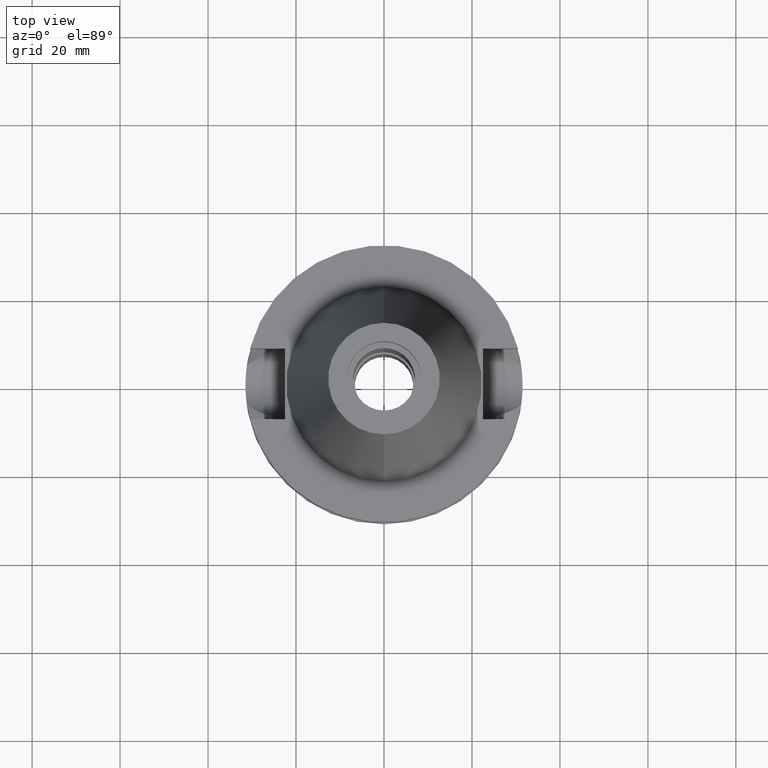
[diagram: clean part render]
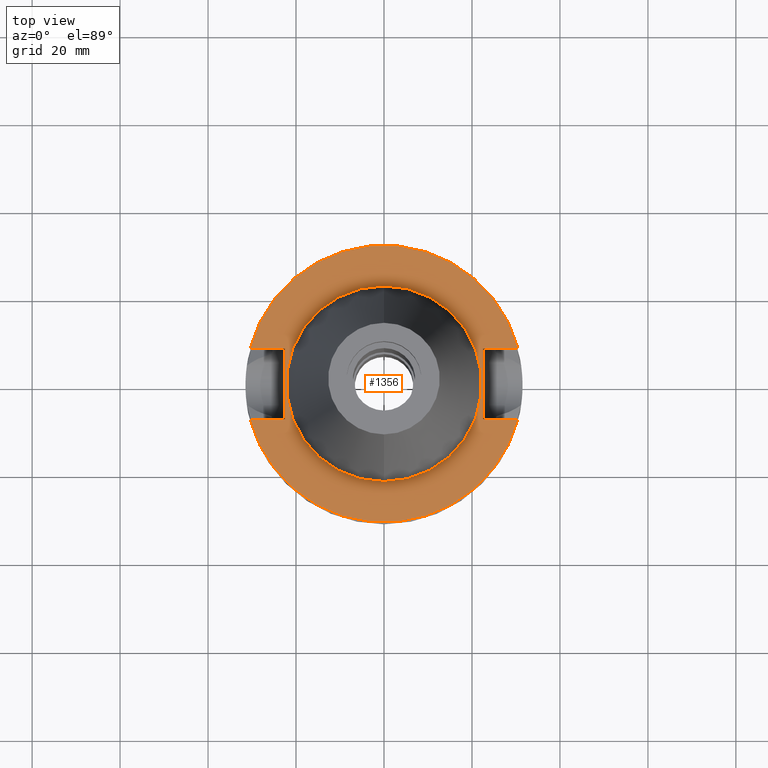
[diagram: same view with one face highlighted and labeled with its STEP entity id]
A machine part, top view. The second image highlights one B-rep face of the part: STEP entity #1356.
In plain terms, the highlighted planar face has unit normal (0, 0, -1).
Its self-contained STEP definition (entity closure, byte-faithful):
#10 = CARTESIAN_POINT ( 'NONE',  ( 0.0000000000000000000, 22.22500000000000142, -2.000000000000000000 ) ) ;
#28 = VERTEX_POINT ( 'NONE', #2263 ) ;
#66 = CARTESIAN_POINT ( 'NONE',  ( -22.50000000000000000, 8.050000000000000711, -2.000000000000000000 ) ) ;
#90 = CARTESIAN_POINT ( 'NONE',  ( 0.0000000000000000000, 2.106637423893000012E-14, -2.000000000000000000 ) ) ;
#122 = DIRECTION ( 'NONE',  ( 1.000000000000000000, 3.573249715389999860E-14, 0.0000000000000000000 ) ) ;
#193 = FACE_BOUND ( 'NONE', #2890, .T. ) ;
#225 = CARTESIAN_POINT ( 'NONE',  ( -30.45402272279000044, 8.050000000000000711, -2.000000000000000000 ) ) ;
#264 = DIRECTION ( 'NONE',  ( -1.000000000000000000, 3.550916904668000126E-14, 0.0000000000000000000 ) ) ;
#272 = VERTEX_POINT ( 'NONE', #2700 ) ;
#293 = DIRECTION ( 'NONE',  ( 0.0000000000000000000, -1.000000000000000000, 0.0000000000000000000 ) ) ;
#309 = VERTEX_POINT ( 'NONE', #225 ) ;
#336 = PLANE ( 'NONE',  #1487 ) ;
#354 = LINE ( 'NONE', #1770, #2792 ) ;
#378 = VERTEX_POINT ( 'NONE', #3040 ) ;
#414 = CARTESIAN_POINT ( 'NONE',  ( -22.50000000000000000, 8.050000000000000711, -2.000000000000000000 ) ) ;
#420 = VECTOR ( 'NONE', #1044, 1000.000000000000000 ) ;
#435 = VERTEX_POINT ( 'NONE', #66 ) ;
#586 = DIRECTION ( 'NONE',  ( 0.0000000000000000000, 0.0000000000000000000, -1.000000000000000000 ) ) ;
#648 = ORIENTED_EDGE ( 'NONE', *, *, #687, .T. ) ;
#687 = EDGE_CURVE ( 'NONE', #3181, #272, #1034, .T. ) ;
#748 = VERTEX_POINT ( 'NONE', #2260 ) ;
#773 = CARTESIAN_POINT ( 'NONE',  ( 0.0000000000000000000, 2.106637423893000012E-14, -2.000000000000000000 ) ) ;
#782 = ORIENTED_EDGE ( 'NONE', *, *, #1744, .F. ) ;
#785 = CIRCLE ( 'NONE', #3118, 31.50000000000000000 ) ;
#889 = AXIS2_PLACEMENT_3D ( 'NONE', #773, #1659, #3270 ) ;
#912 = DIRECTION ( 'NONE',  ( 0.0000000000000000000, 1.000000000000000000, 0.0000000000000000000 ) ) ;
#913 = VERTEX_POINT ( 'NONE', #10 ) ;
#985 = CARTESIAN_POINT ( 'NONE',  ( -22.50000000000000000, -8.050000000000000711, -2.000000000000000000 ) ) ;
#1034 = LINE ( 'NONE', #1341, #2803 ) ;
#1044 = DIRECTION ( 'NONE',  ( 0.0000000000000000000, -1.000000000000000000, 0.0000000000000000000 ) ) ;
#1097 = EDGE_CURVE ( 'NONE', #913, #2080, #1500, .T. ) ;
#1102 = CARTESIAN_POINT ( 'NONE',  ( 0.0000000000000000000, -22.22500000000000142, -2.000000000000000000 ) ) ;
#1104 = CARTESIAN_POINT ( 'NONE',  ( 22.50000000000000000, 8.050000000000000711, -2.000000000000000000 ) ) ;
#1127 = CARTESIAN_POINT ( 'NONE',  ( 0.0000000000000000000, 2.106637423893000012E-14, -2.000000000000000000 ) ) ;
#1155 = ORIENTED_EDGE ( 'NONE', *, *, #2152, .F. ) ;
#1182 = CARTESIAN_POINT ( 'NONE',  ( 22.50000000000000000, -8.050000000000000711, -2.000000000000000000 ) ) ;
#1231 = EDGE_CURVE ( 'NONE', #748, #272, #3504, .T. ) ;
#1331 = ORIENTED_EDGE ( 'NONE', *, *, #2893, .F. ) ;
#1341 = CARTESIAN_POINT ( 'NONE',  ( -22.50000000000000000, -8.050000000000000711, -2.000000000000000000 ) ) ;
#1356 = ADVANCED_FACE ( 'NONE', ( #2561, #193 ), #336, .F. ) ;
#1487 = AXIS2_PLACEMENT_3D ( 'NONE', #3072, #1687, #293 ) ;
#1500 = CIRCLE ( 'NONE', #889, 22.22500000000000142 ) ;
#1546 = CIRCLE ( 'NONE', #2848, 22.22500000000000142 ) ;
#1641 = DIRECTION ( 'NONE',  ( 0.0000000000000000000, 0.0000000000000000000, -1.000000000000000000 ) ) ;
#1659 = DIRECTION ( 'NONE',  ( 0.0000000000000000000, 0.0000000000000000000, 1.000000000000000000 ) ) ;
#1662 = CARTESIAN_POINT ( 'NONE',  ( 22.50000000000000000, 8.050000000000000711, -2.000000000000000000 ) ) ;
#1687 = DIRECTION ( 'NONE',  ( 0.0000000000000000000, 0.0000000000000000000, -1.000000000000000000 ) ) ;
#1744 = EDGE_CURVE ( 'NONE', #2080, #913, #1546, .T. ) ;
#1760 = LINE ( 'NONE', #2021, #2526 ) ;
#1770 = CARTESIAN_POINT ( 'NONE',  ( -22.50000000000000000, -8.050000000000000711, -2.000000000000000000 ) ) ;
#1924 = LINE ( 'NONE', #1104, #420 ) ;
#1933 = LINE ( 'NONE', #1662, #3114 ) ;
#1973 = AXIS2_PLACEMENT_3D ( 'NONE', #90, #586, #3320 ) ;
#2021 = CARTESIAN_POINT ( 'NONE',  ( 22.50000000000000000, -8.050000000000000711, -2.000000000000000000 ) ) ;
#2078 = ORIENTED_EDGE ( 'NONE', *, *, #2359, .F. ) ;
#2080 = VERTEX_POINT ( 'NONE', #1102 ) ;
#2109 = ORIENTED_EDGE ( 'NONE', *, *, #1231, .F. ) ;
#2124 = DIRECTION ( 'NONE',  ( 0.0000000000000000000, 1.000000000000000000, 0.0000000000000000000 ) ) ;
#2138 = ORIENTED_EDGE ( 'NONE', *, *, #2574, .T. ) ;
#2152 = EDGE_CURVE ( 'NONE', #3181, #435, #354, .T. ) ;
#2260 = CARTESIAN_POINT ( 'NONE',  ( 30.45402272279000044, -8.050000000000000711, -2.000000000000000000 ) ) ;
#2263 = CARTESIAN_POINT ( 'NONE',  ( 30.45402272279000044, 8.050000000000000711, -2.000000000000000000 ) ) ;
#2279 = EDGE_CURVE ( 'NONE', #435, #309, #2614, .T. ) ;
#2290 = DIRECTION ( 'NONE',  ( -1.000000000000000000, -3.550916904668000126E-14, 0.0000000000000000000 ) ) ;
#2316 = EDGE_LOOP ( 'NONE', ( #648, #2109, #2078, #2678, #2138, #1331, #3301, #1155 ) ) ;
#2359 = EDGE_CURVE ( 'NONE', #3075, #748, #1760, .T. ) ;
#2461 = VECTOR ( 'NONE', #2290, 1000.000000000000000 ) ;
#2467 = DIRECTION ( 'NONE',  ( 1.000000000000000000, -3.506251283225999947E-14, 0.0000000000000000000 ) ) ;
#2526 = VECTOR ( 'NONE', #122, 1000.000000000000000 ) ;
#2557 = DIRECTION ( 'NONE',  ( 0.0000000000000000000, -1.000000000000000000, 0.0000000000000000000 ) ) ;
#2561 = FACE_OUTER_BOUND ( 'NONE', #2316, .T. ) ;
#2574 = EDGE_CURVE ( 'NONE', #378, #28, #1933, .T. ) ;
#2579 = CARTESIAN_POINT ( 'NONE',  ( 0.0000000000000000000, 2.106637423893000012E-14, -2.000000000000000000 ) ) ;
#2614 = LINE ( 'NONE', #414, #2461 ) ;
#2630 = ORIENTED_EDGE ( 'NONE', *, *, #1097, .F. ) ;
#2678 = ORIENTED_EDGE ( 'NONE', *, *, #2845, .F. ) ;
#2700 = CARTESIAN_POINT ( 'NONE',  ( -30.45402272279000044, -8.050000000000000711, -2.000000000000000000 ) ) ;
#2792 = VECTOR ( 'NONE', #912, 1000.000000000000000 ) ;
#2803 = VECTOR ( 'NONE', #264, 1000.000000000000000 ) ;
#2845 = EDGE_CURVE ( 'NONE', #378, #3075, #1924, .T. ) ;
#2848 = AXIS2_PLACEMENT_3D ( 'NONE', #2579, #3369, #2557 ) ;
#2890 = EDGE_LOOP ( 'NONE', ( #2630, #782 ) ) ;
#2893 = EDGE_CURVE ( 'NONE', #309, #28, #785, .T. ) ;
#3040 = CARTESIAN_POINT ( 'NONE',  ( 22.50000000000000000, 8.050000000000000711, -2.000000000000000000 ) ) ;
#3072 = CARTESIAN_POINT ( 'NONE',  ( 0.0000000000000000000, 1.200153863163999924E-14, -2.000000000000000000 ) ) ;
#3075 = VERTEX_POINT ( 'NONE', #1182 ) ;
#3114 = VECTOR ( 'NONE', #2467, 1000.000000000000000 ) ;
#3118 = AXIS2_PLACEMENT_3D ( 'NONE', #1127, #1641, #2124 ) ;
#3181 = VERTEX_POINT ( 'NONE', #985 ) ;
#3270 = DIRECTION ( 'NONE',  ( 0.0000000000000000000, 1.000000000000000000, 0.0000000000000000000 ) ) ;
#3301 = ORIENTED_EDGE ( 'NONE', *, *, #2279, .F. ) ;
#3320 = DIRECTION ( 'NONE',  ( 0.0000000000000000000, -1.000000000000000000, 0.0000000000000000000 ) ) ;
#3369 = DIRECTION ( 'NONE',  ( 0.0000000000000000000, 0.0000000000000000000, 1.000000000000000000 ) ) ;
#3504 = CIRCLE ( 'NONE', #1973, 31.50000000000000000 ) ;